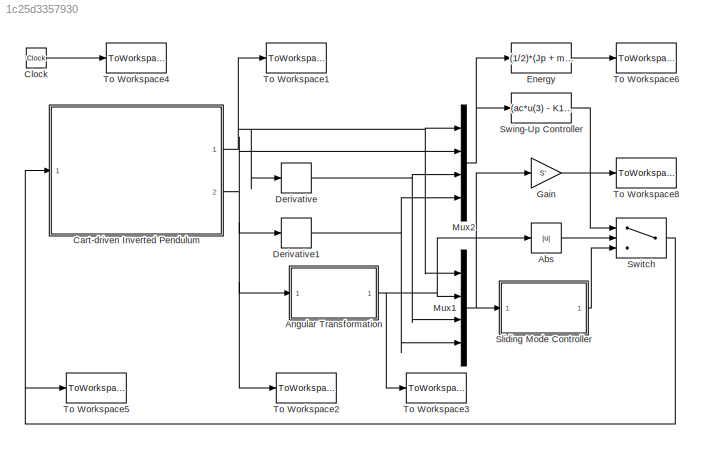
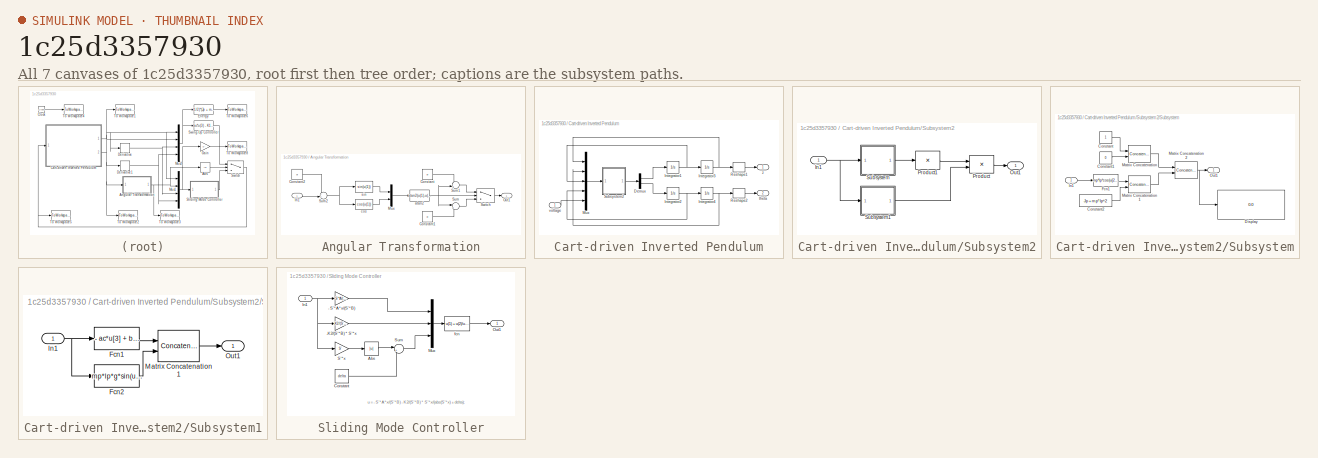
[diagram: thumbnail index - all 7 canvases of the model, root first then tree order]
MODEL slx_1c25d3357930
KIND model
BLOCK [Abs] Abs
  SaturateOnIntegerOverflow = off
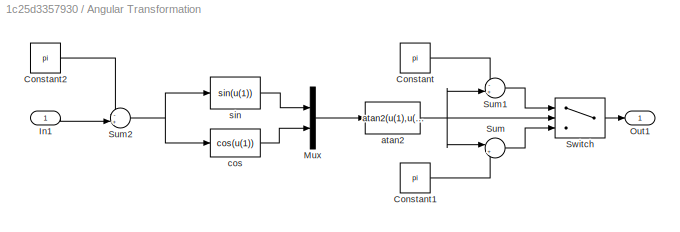
BLOCK [SubSystem] Angular Transformation
  FunctionWithSeparateData = off
  MaskHideContents = off
  MinAlgLoopOccurrences = off
  Opaque = off
  Ports = [1, 1]
  PropExecContextOutsideSubsystem = off
  RTWSystemCode = Auto
  RequestExecContextInheritance = off
BLOCK [Constant] Angular Transformation/Constant
  Value = pi
BLOCK [Constant] Angular Transformation/Constant1
  Value = pi
BLOCK [Constant] Angular Transformation/Constant2
  Value = pi
BLOCK [Inport] Angular Transformation/In1
  IconDisplay = Port number
BLOCK [Mux] Angular Transformation/Mux
  DisplayOption = bar
  Inputs = 2
  Ports = [2, 1]
BLOCK [Outport] Angular Transformation/Out1
  IconDisplay = Port number
BLOCK [Sum] Angular Transformation/Sum
  IconShape = round
  Inputs = |++
  Ports = [2, 1]
BLOCK [Sum] Angular Transformation/Sum1
  IconShape = round
  Inputs = -+|
  Ports = [2, 1]
BLOCK [Sum] Angular Transformation/Sum2
  IconShape = round
  Inputs = -+|
  Ports = [2, 1]
BLOCK [Switch] Angular Transformation/Switch
  InputSameDT = off
  SaturateOnIntegerOverflow = off
BLOCK [Fcn] Angular Transformation/atan2
  Expr = atan2(u(1),u(2))
BLOCK [Fcn] Angular Transformation/cos
  Expr = cos(u(1))
BLOCK [Fcn] Angular Transformation/sin
  Expr = sin(u(1))
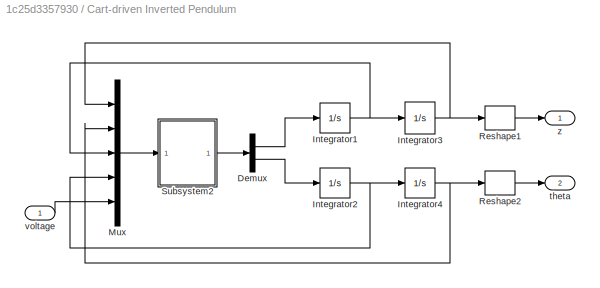
BLOCK [SubSystem] Cart-driven Inverted Pendulum
  FunctionWithSeparateData = off
  MaskHideContents = off
  MinAlgLoopOccurrences = off
  Opaque = off
  Ports = [1, 2]
  PropExecContextOutsideSubsystem = off
  RTWSystemCode = Auto
  RequestExecContextInheritance = off
BLOCK [Demux] Cart-driven Inverted Pendulum/Demux
  DisplayOption = bar
  Outputs = 2
  Ports = [1, 2]
BLOCK [Integrator] Cart-driven Inverted Pendulum/Integrator1
  InitialCondition = dz_0
  Ports = [1, 1]
BLOCK [Integrator] Cart-driven Inverted Pendulum/Integrator2
  InitialCondition = dtheta_0
  Ports = [1, 1]
BLOCK [Integrator] Cart-driven Inverted Pendulum/Integrator3
  InitialCondition = z_0
  Ports = [1, 1]
BLOCK [Integrator] Cart-driven Inverted Pendulum/Integrator4
  InitialCondition = theta_0
  Ports = [1, 1]
BLOCK [Mux] Cart-driven Inverted Pendulum/Mux
  DisplayOption = bar
  Inputs = 5
  Ports = [5, 1]
BLOCK [Reshape] Cart-driven Inverted Pendulum/Reshape1
  Ports = [1, 1]
BLOCK [Reshape] Cart-driven Inverted Pendulum/Reshape2
  Ports = [1, 1]
BLOCK [SubSystem] Cart-driven Inverted Pendulum/Subsystem2
  FunctionWithSeparateData = off
  MaskHideContents = off
  MinAlgLoopOccurrences = off
  Opaque = off
  Ports = [1, 1]
  PropExecContextOutsideSubsystem = off
  RTWSystemCode = Auto
  RequestExecContextInheritance = off
BLOCK [Inport] Cart-driven Inverted Pendulum/Subsystem2/In1
  IconDisplay = Port number
BLOCK [Outport] Cart-driven Inverted Pendulum/Subsystem2/Out1
  IconDisplay = Port number
BLOCK [Product] Cart-driven Inverted Pendulum/Subsystem2/Product
  Multiplication = Matrix(*)
  Ports = [2, 1]
  RndMeth = Floor
BLOCK [Product] Cart-driven Inverted Pendulum/Subsystem2/Product1
  Inputs = /
  Multiplication = Matrix(*)
  Ports = [1, 1]
  RndMeth = Floor
BLOCK [SubSystem] Cart-driven Inverted Pendulum/Subsystem2/Subsystem
  FunctionWithSeparateData = off
  MaskHideContents = off
  MinAlgLoopOccurrences = off
  Opaque = off
  Ports = [1, 1]
  PropExecContextOutsideSubsystem = off
  RTWSystemCode = Auto
  RequestExecContextInheritance = off
BLOCK [Constant] Cart-driven Inverted Pendulum/Subsystem2/Subsystem/Constant
BLOCK [Constant] Cart-driven Inverted Pendulum/Subsystem2/Subsystem/Constant1
  Value = 0
BLOCK [Constant] Cart-driven Inverted Pendulum/Subsystem2/Subsystem/Constant2
  Value = Jp + mp*lp^2
BLOCK [Display] Cart-driven Inverted Pendulum/Subsystem2/Subsystem/Display
  Decimation = 1
  Lockdown = off
  Ports = [1]
BLOCK [Fcn] Cart-driven Inverted Pendulum/Subsystem2/Subsystem/Fcn1
  Expr = mp*lp*cos(u[2])
BLOCK [Inport] Cart-driven Inverted Pendulum/Subsystem2/Subsystem/In1
  IconDisplay = Port number
BLOCK [Concatenate] Cart-driven Inverted Pendulum/Subsystem2/Subsystem/Matrix Concatenation
  ConcatenateDimension = 2
  Mode = Multidimensional array
  Ports = [2, 1]
BLOCK [Concatenate] Cart-driven Inverted Pendulum/Subsystem2/Subsystem/Matrix Concatenation1
  ConcatenateDimension = 2
  Mode = Multidimensional array
  Ports = [2, 1]
BLOCK [Concatenate] Cart-driven Inverted Pendulum/Subsystem2/Subsystem/Matrix Concatenation2
  Mode = Multidimensional array
  Ports = [2, 1]
BLOCK [Outport] Cart-driven Inverted Pendulum/Subsystem2/Subsystem/Out1
  IconDisplay = Port number
BLOCK [SubSystem] Cart-driven Inverted Pendulum/Subsystem2/Subsystem1
  FunctionWithSeparateData = off
  MaskHideContents = off
  MinAlgLoopOccurrences = off
  Opaque = off
  Ports = [1, 1]
  PropExecContextOutsideSubsystem = off
  RTWSystemCode = Auto
  RequestExecContextInheritance = off
BLOCK [Fcn] Cart-driven Inverted Pendulum/Subsystem2/Subsystem1/Fcn1
  Expr = - ac*u[3] + bc*u[5]
BLOCK [Fcn] Cart-driven Inverted Pendulum/Subsystem2/Subsystem1/Fcn2
  Expr = mp*lp*g*sin(u[2]) - mup*u[4]
BLOCK [Inport] Cart-driven Inverted Pendulum/Subsystem2/Subsystem1/In1
  IconDisplay = Port number
BLOCK [Concatenate] Cart-driven Inverted Pendulum/Subsystem2/Subsystem1/Matrix Concatenation1
  Mode = Multidimensional array
  Ports = [2, 1]
BLOCK [Outport] Cart-driven Inverted Pendulum/Subsystem2/Subsystem1/Out1
  IconDisplay = Port number
BLOCK [Outport] Cart-driven Inverted Pendulum/theta
  IconDisplay = Port number
  Port = 2
BLOCK [Inport] Cart-driven Inverted Pendulum/voltage
  IconDisplay = Port number
BLOCK [Outport] Cart-driven Inverted Pendulum/z
  IconDisplay = Port number
BLOCK [Clock] Clock
BLOCK [Derivative] Derivative
BLOCK [Derivative] Derivative1
BLOCK [Fcn] Energy
  Expr = (1/2)*(Jp + mp*lp^2)*u(4)^2 + mp*g*lp*(1 + cos(u(2)))
BLOCK [Gain] Gain
  Gain = S'
  Multiplication = Matrix(K*u)
BLOCK [Mux] Mux1
  DisplayOption = bar
  Ports = [4, 1]
BLOCK [Mux] Mux2
  DisplayOption = bar
  Ports = [4, 1]
BLOCK [SubSystem] Sliding Mode Controller
  FunctionWithSeparateData = off
  MaskHideContents = off
  MinAlgLoopOccurrences = off
  Opaque = off
  Ports = [1, 1]
  PropExecContextOutsideSubsystem = off
  RTWSystemCode = Auto
  RequestExecContextInheritance = off
BLOCK [Gain] Sliding Mode Controller/- S'*A*x//(S'*B)
  Gain = -S'*A/(S'*B)
  Multiplication = Matrix(K*u)
BLOCK [Gain] Sliding Mode Controller/-K2//(S'*B) * S'*x
  Gain = -K2/(S'*B) * S'
  Multiplication = Matrix(K*u)
BLOCK [Abs] Sliding Mode Controller/Abs
  SaturateOnIntegerOverflow = off
BLOCK [Constant] Sliding Mode Controller/Constant
  Value = delta
BLOCK [Inport] Sliding Mode Controller/In1
  IconDisplay = Port number
BLOCK [Mux] Sliding Mode Controller/Mux
  DisplayOption = bar
  Inputs = 3
  Ports = [3, 1]
BLOCK [Outport] Sliding Mode Controller/Out1
  IconDisplay = Port number
BLOCK [Gain] Sliding Mode Controller/S'*x
  Gain = S'
  Multiplication = Matrix(K*u)
BLOCK [Sum] Sliding Mode Controller/Sum
  IconShape = round
  Inputs = |++
  Ports = [2, 1]
BLOCK [Fcn] Sliding Mode Controller/fcn
  Expr = u(1) + u(2)/u(3)
BLOCK [Fcn] Swing-Up Controller
  Expr = (ac*u(3) - K1*u(4)*cos(u(2)))/bc
BLOCK [Switch] Switch
  Criteria = u2 > Threshold
  InputSameDT = off
  SaturateOnIntegerOverflow = off
  Threshold = switch_angle
BLOCK [ToWorkspace] To Workspace1
  MaxDataPoints = inf
  Ports = [1]
  SampleTime = -1
  VariableName = z
BLOCK [ToWorkspace] To Workspace2
  MaxDataPoints = inf
  Ports = [1]
  SampleTime = -1
  VariableName = theta
BLOCK [ToWorkspace] To Workspace3
  MaxDataPoints = inf
  Ports = [1]
  SampleTime = -1
  VariableName = theta_up
BLOCK [ToWorkspace] To Workspace4
  MaxDataPoints = inf
  Ports = [1]
  SampleTime = -1
  VariableName = t
BLOCK [ToWorkspace] To Workspace5
  MaxDataPoints = inf
  Ports = [1]
  SampleTime = -1
  VariableName = u
BLOCK [ToWorkspace] To Workspace6
  MaxDataPoints = inf
  Ports = [1]
  SampleTime = -1
  VariableName = E
BLOCK [ToWorkspace] To Workspace8
  MaxDataPoints = inf
  Ports = [1]
  SampleTime = -1
  VariableName = Sx
ANNOTATION Sliding Mode Controller: u = - S'*A*x/(S'*B) - K2/(S'*B) * S'*x/(abs(S'*x) + delta);
LINE Abs:1 -> Switch:2
LINE Angular Transformation/Constant1:1 -> Angular Transformation/Sum:2
LINE Angular Transformation/Constant2:1 -> Angular Transformation/Sum2:1
LINE Angular Transformation/Constant:1 -> Angular Transformation/Sum1:1
LINE Angular Transformation/In1:1 -> Angular Transformation/Sum2:2
LINE Angular Transformation/Mux:1 -> Angular Transformation/atan2:1
LINE Angular Transformation/Sum1:1 -> Angular Transformation/Switch:1
NET Angular Transformation/Sum2:1 -> Angular Transformation/cos:1, Angular Transformation/sin:1
LINE Angular Transformation/Sum:1 -> Angular Transformation/Switch:3
LINE Angular Transformation/Switch:1 -> Angular Transformation/Out1:1
NET Angular Transformation/atan2:1 -> Angular Transformation/Sum1:2, Angular Transformation/Sum:1, Angular Transformation/Switch:2
LINE Angular Transformation/cos:1 -> Angular Transformation/Mux:2
LINE Angular Transformation/sin:1 -> Angular Transformation/Mux:1
NET Angular Transformation:1 -> Abs:1, Mux1:2, To Workspace3:1
LINE Cart-driven Inverted Pendulum/Demux:1 -> Cart-driven Inverted Pendulum/Integrator1:1
LINE Cart-driven Inverted Pendulum/Demux:2 -> Cart-driven Inverted Pendulum/Integrator2:1
NET Cart-driven Inverted Pendulum/Integrator1:1 -> Cart-driven Inverted Pendulum/Integrator3:1, Cart-driven Inverted Pendulum/Mux:3
NET Cart-driven Inverted Pendulum/Integrator2:1 -> Cart-driven Inverted Pendulum/Integrator4:1, Cart-driven Inverted Pendulum/Mux:4
NET Cart-driven Inverted Pendulum/Integrator3:1 -> Cart-driven Inverted Pendulum/Mux:1, Cart-driven Inverted Pendulum/Reshape1:1
NET Cart-driven Inverted Pendulum/Integrator4:1 -> Cart-driven Inverted Pendulum/Mux:2, Cart-driven Inverted Pendulum/Reshape2:1
LINE Cart-driven Inverted Pendulum/Mux:1 -> Cart-driven Inverted Pendulum/Subsystem2:1
LINE Cart-driven Inverted Pendulum/Reshape1:1 -> Cart-driven Inverted Pendulum/z:1
LINE Cart-driven Inverted Pendulum/Reshape2:1 -> Cart-driven Inverted Pendulum/theta:1
NET Cart-driven Inverted Pendulum/Subsystem2/In1:1 -> Cart-driven Inverted Pendulum/Subsystem2/Subsystem1:1, Cart-driven Inverted Pendulum/Subsystem2/Subsystem:1
LINE Cart-driven Inverted Pendulum/Subsystem2/Product1:1 -> Cart-driven Inverted Pendulum/Subsystem2/Product:1
LINE Cart-driven Inverted Pendulum/Subsystem2/Product:1 -> Cart-driven Inverted Pendulum/Subsystem2/Out1:1
LINE Cart-driven Inverted Pendulum/Subsystem2/Subsystem/Constant1:1 -> Cart-driven Inverted Pendulum/Subsystem2/Subsystem/Matrix Concatenation:2
LINE Cart-driven Inverted Pendulum/Subsystem2/Subsystem/Constant2:1 -> Cart-driven Inverted Pendulum/Subsystem2/Subsystem/Matrix Concatenation1:2
LINE Cart-driven Inverted Pendulum/Subsystem2/Subsystem/Constant:1 -> Cart-driven Inverted Pendulum/Subsystem2/Subsystem/Matrix Concatenation:1
LINE Cart-driven Inverted Pendulum/Subsystem2/Subsystem/Fcn1:1 -> Cart-driven Inverted Pendulum/Subsystem2/Subsystem/Matrix Concatenation1:1
LINE Cart-driven Inverted Pendulum/Subsystem2/Subsystem/In1:1 -> Cart-driven Inverted Pendulum/Subsystem2/Subsystem/Fcn1:1
LINE Cart-driven Inverted Pendulum/Subsystem2/Subsystem/Matrix Concatenation1:1 -> Cart-driven Inverted Pendulum/Subsystem2/Subsystem/Matrix Concatenation2:2
NET Cart-driven Inverted Pendulum/Subsystem2/Subsystem/Matrix Concatenation2:1 -> Cart-driven Inverted Pendulum/Subsystem2/Subsystem/Display:1, Cart-driven Inverted Pendulum/Subsystem2/Subsystem/Out1:1
LINE Cart-driven Inverted Pendulum/Subsystem2/Subsystem/Matrix Concatenation:1 -> Cart-driven Inverted Pendulum/Subsystem2/Subsystem/Matrix Concatenation2:1
LINE Cart-driven Inverted Pendulum/Subsystem2/Subsystem1/Fcn1:1 -> Cart-driven Inverted Pendulum/Subsystem2/Subsystem1/Matrix Concatenation1:1
LINE Cart-driven Inverted Pendulum/Subsystem2/Subsystem1/Fcn2:1 -> Cart-driven Inverted Pendulum/Subsystem2/Subsystem1/Matrix Concatenation1:2
NET Cart-driven Inverted Pendulum/Subsystem2/Subsystem1/In1:1 -> Cart-driven Inverted Pendulum/Subsystem2/Subsystem1/Fcn1:1, Cart-driven Inverted Pendulum/Subsystem2/Subsystem1/Fcn2:1
LINE Cart-driven Inverted Pendulum/Subsystem2/Subsystem1/Matrix Concatenation1:1 -> Cart-driven Inverted Pendulum/Subsystem2/Subsystem1/Out1:1
LINE Cart-driven Inverted Pendulum/Subsystem2/Subsystem1:1 -> Cart-driven Inverted Pendulum/Subsystem2/Product:2
LINE Cart-driven Inverted Pendulum/Subsystem2/Subsystem:1 -> Cart-driven Inverted Pendulum/Subsystem2/Product1:1
LINE Cart-driven Inverted Pendulum/Subsystem2:1 -> Cart-driven Inverted Pendulum/Demux:1
LINE Cart-driven Inverted Pendulum/voltage:1 -> Cart-driven Inverted Pendulum/Mux:5
NET Cart-driven Inverted Pendulum:1 -> Derivative:1, Mux1:1, Mux2:1, To Workspace1:1
NET Cart-driven Inverted Pendulum:2 -> Angular Transformation:1, Derivative1:1, Mux2:2, To Workspace2:1
LINE Clock:1 -> To Workspace4:1
NET Derivative1:1 -> Mux1:4, Mux2:4
NET Derivative:1 -> Mux1:3, Mux2:3
LINE Energy:1 -> To Workspace6:1
LINE Gain:1 -> To Workspace8:1
NET Mux1:1 -> Gain:1, Sliding Mode Controller:1
NET Mux2:1 -> Energy:1, Swing-Up Controller:1
LINE Sliding Mode Controller/- S'*A*x//(S'*B):1 -> Sliding Mode Controller/Mux:1
LINE Sliding Mode Controller/-K2//(S'*B) * S'*x:1 -> Sliding Mode Controller/Mux:2
LINE Sliding Mode Controller/Abs:1 -> Sliding Mode Controller/Sum:1
LINE Sliding Mode Controller/Constant:1 -> Sliding Mode Controller/Sum:2
NET Sliding Mode Controller/In1:1 -> Sliding Mode Controller/- S'*A*x//(S'*B):1, Sliding Mode Controller/-K2//(S'*B) * S'*x:1, Sliding Mode Controller/S'*x:1
LINE Sliding Mode Controller/Mux:1 -> Sliding Mode Controller/fcn:1
LINE Sliding Mode Controller/S'*x:1 -> Sliding Mode Controller/Abs:1
LINE Sliding Mode Controller/Sum:1 -> Sliding Mode Controller/Mux:3
LINE Sliding Mode Controller/fcn:1 -> Sliding Mode Controller/Out1:1
LINE Sliding Mode Controller:1 -> Switch:3
LINE Swing-Up Controller:1 -> Switch:1
NET Switch:1 -> Cart-driven Inverted Pendulum:1, To Workspace5:1
note: NET lines group one-source signal fan-out (src -> all destinations, sorted); 1:1 wires keep LINE
